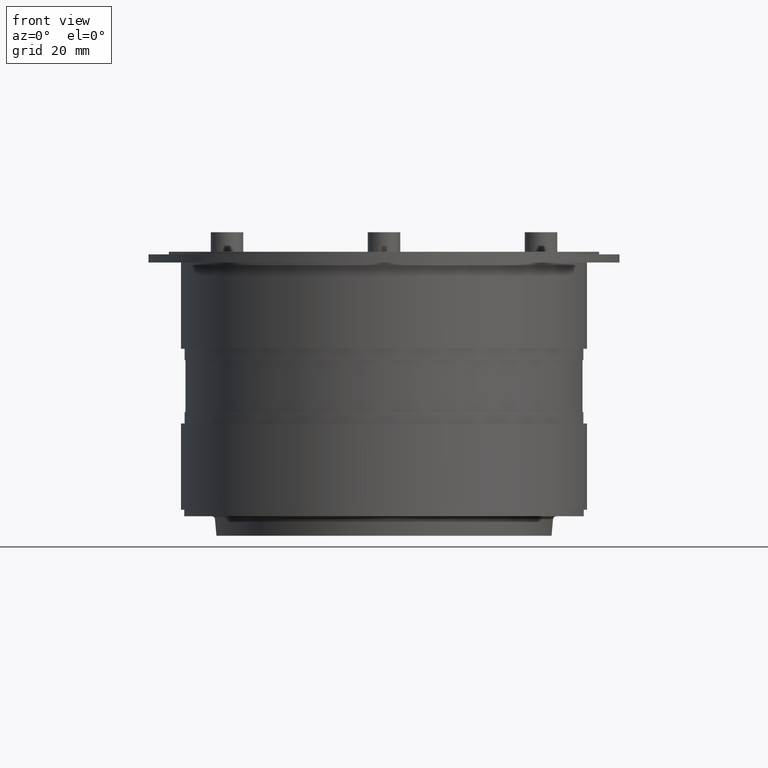
[diagram: clean part render]
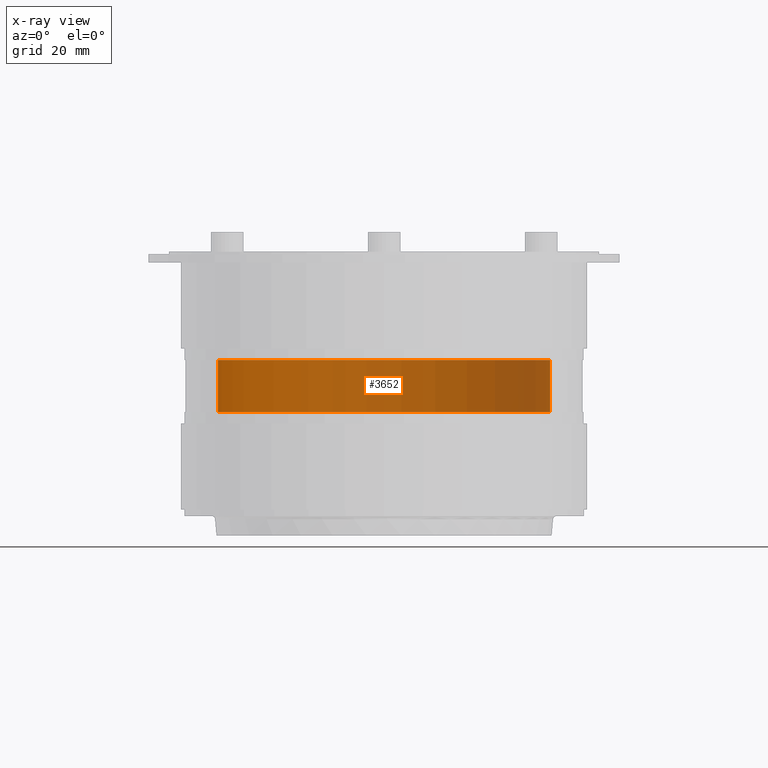
[diagram: x-ray — body ghosted, one internal face saturated and labeled with its STEP entity id]
A machine part, front view, then the same camera in x-ray: the body is ghosted and one INTERNAL B-rep face — a face not visible from any outside direction — is saturated and labeled: STEP entity #3652.
In plain terms, the highlighted cylindrical surface (partial cylindrical patch) has radius 51 mm, axis along (0, 0, 1).
Its self-contained STEP definition (entity closure, byte-faithful):
#3611=CARTESIAN_POINT('',(14.003469569883123,-24.850000000000094,-1.250000000000000));
#3612=DIRECTION('',(0.0,0.0,1.0));
#3613=DIRECTION('',(-1.0,0.0,0.0));
#3614=AXIS2_PLACEMENT_3D('',#3611,#3612,#3613);
#3615=CYLINDRICAL_SURFACE('',#3614,51.0);
#3616=CARTESIAN_POINT('',(-36.996432390806945,-24.750000000000114,14.750000000000000));
#3617=VERTEX_POINT('',#3616);
#3618=CARTESIAN_POINT('',(65.003371530573190,-24.750000000000114,14.750000000000000));
#3619=VERTEX_POINT('',#3618);
#3620=CARTESIAN_POINT('',(14.003469569883123,-24.850000000000094,14.750000000000000));
#3621=DIRECTION('',(0.0,0.0,-1.0));
#3622=DIRECTION('',(-1.0,0.0,0.0));
#3623=AXIS2_PLACEMENT_3D('',#3620,#3621,#3622);
#3624=CIRCLE('',#3623,51.0);
#3625=EDGE_CURVE('',#3617,#3619,#3624,.T.);
#3626=ORIENTED_EDGE('',*,*,#3625,.T.);
#3627=CARTESIAN_POINT('',(65.003371530573190,-24.750000000000114,-1.250000000000000));
#3628=VERTEX_POINT('',#3627);
#3629=CARTESIAN_POINT('',(65.003371530573190,-24.750000000000114,-1.250000000000000));
#3630=DIRECTION('',(0.0,0.0,1.0));
#3631=VECTOR('',#3630,16.0);
#3632=LINE('',#3629,#3631);
#3633=EDGE_CURVE('',#3628,#3619,#3632,.T.);
#3634=ORIENTED_EDGE('',*,*,#3633,.F.);
#3635=CARTESIAN_POINT('',(-36.996432390806945,-24.750000000000114,-1.250000000000000));
#3636=VERTEX_POINT('',#3635);
#3637=CARTESIAN_POINT('',(14.003469569883123,-24.850000000000094,-1.250000000000000));
#3638=DIRECTION('',(0.0,0.0,-1.0));
#3639=DIRECTION('',(-1.0,0.0,0.0));
#3640=AXIS2_PLACEMENT_3D('',#3637,#3638,#3639);
#3641=CIRCLE('',#3640,51.0);
#3642=EDGE_CURVE('',#3636,#3628,#3641,.T.);
#3643=ORIENTED_EDGE('',*,*,#3642,.F.);
#3644=CARTESIAN_POINT('',(-36.996432390806945,-24.750000000000114,-1.250000000000000));
#3645=DIRECTION('',(0.0,0.0,1.0));
#3646=VECTOR('',#3645,16.0);
#3647=LINE('',#3644,#3646);
#3648=EDGE_CURVE('',#3636,#3617,#3647,.T.);
#3649=ORIENTED_EDGE('',*,*,#3648,.T.);
#3650=EDGE_LOOP('',(#3626,#3634,#3643,#3649));
#3651=FACE_OUTER_BOUND('',#3650,.T.);
#3652=ADVANCED_FACE('',(#3651),#3615,.T.);